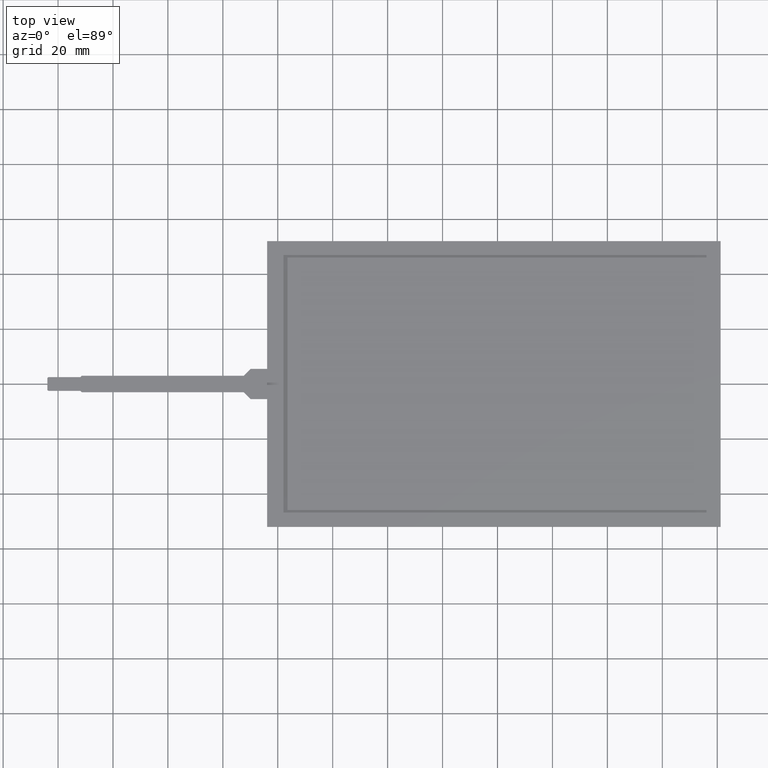
[diagram: clean part render]
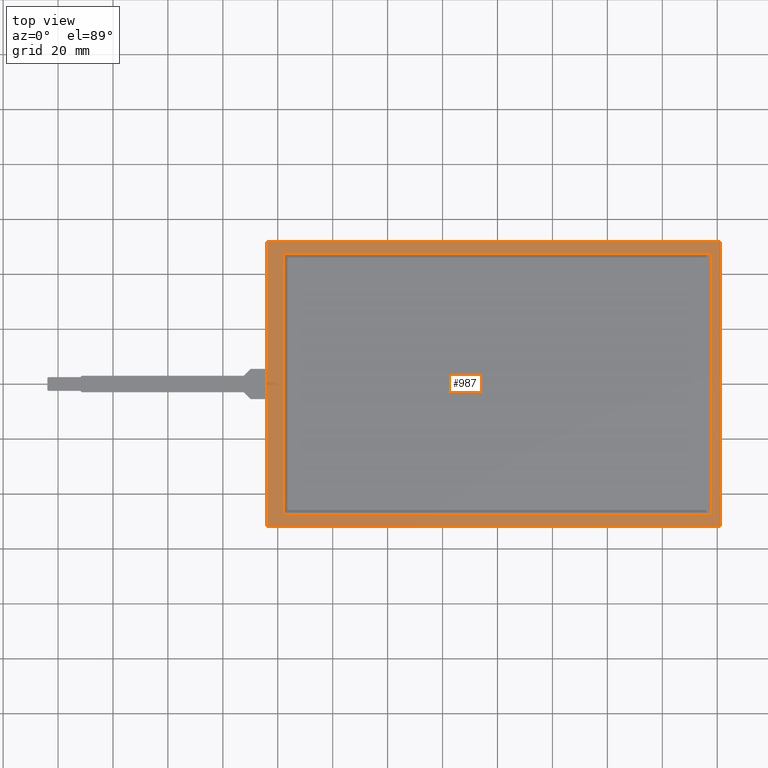
[diagram: same view with one face highlighted and labeled with its STEP entity id]
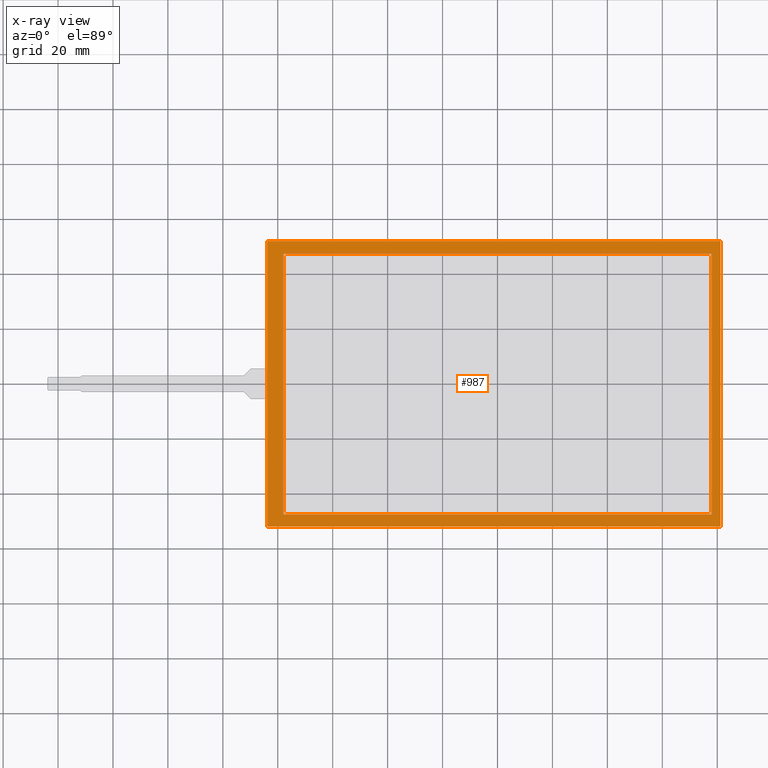
[diagram: x-ray of the same camera — body ghosted, the highlighted face saturated]
A machine part, top view. The second image highlights one B-rep face of the part: STEP entity #987.
The next image is the same camera in x-ray: the body ghosted, the highlighted face saturated — about 0% of this face is hidden behind the body in this view.
In plain terms, the highlighted planar face has unit normal (0, 0, 1).
Its self-contained STEP definition (entity closure, byte-faithful):
#67=FACE_BOUND('',#131,.T.);
#77=FACE_OUTER_BOUND('',#130,.T.);
#130=EDGE_LOOP('',(#696,#697,#698,#699));
#131=EDGE_LOOP('',(#700,#701,#702,#703));
#186=LINE('',#1402,#312);
#190=LINE('',#1410,#316);
#193=LINE('',#1416,#319);
#196=LINE('',#1421,#322);
#198=LINE('',#1427,#324);
#199=LINE('',#1429,#325);
#200=LINE('',#1431,#326);
#201=LINE('',#1432,#327);
#312=VECTOR('',#1142,10.);
#316=VECTOR('',#1148,10.);
#319=VECTOR('',#1153,10.);
#322=VECTOR('',#1158,10.);
#324=VECTOR('',#1164,10.);
#325=VECTOR('',#1165,10.);
#326=VECTOR('',#1166,10.);
#327=VECTOR('',#1167,10.);
#434=VERTEX_POINT('',#1400);
#435=VERTEX_POINT('',#1401);
#438=VERTEX_POINT('',#1409);
#440=VERTEX_POINT('',#1415);
#442=VERTEX_POINT('',#1425);
#443=VERTEX_POINT('',#1426);
#444=VERTEX_POINT('',#1428);
#445=VERTEX_POINT('',#1430);
#530=EDGE_CURVE('',#434,#435,#186,.T.);
#534=EDGE_CURVE('',#438,#434,#190,.T.);
#537=EDGE_CURVE('',#440,#438,#193,.T.);
#540=EDGE_CURVE('',#435,#440,#196,.T.);
#542=EDGE_CURVE('',#442,#443,#198,.T.);
#543=EDGE_CURVE('',#443,#444,#199,.T.);
#544=EDGE_CURVE('',#444,#445,#200,.T.);
#545=EDGE_CURVE('',#445,#442,#201,.T.);
#696=ORIENTED_EDGE('',*,*,#542,.T.);
#697=ORIENTED_EDGE('',*,*,#543,.T.);
#698=ORIENTED_EDGE('',*,*,#544,.T.);
#699=ORIENTED_EDGE('',*,*,#545,.T.);
#700=ORIENTED_EDGE('',*,*,#530,.T.);
#701=ORIENTED_EDGE('',*,*,#540,.T.);
#702=ORIENTED_EDGE('',*,*,#537,.T.);
#703=ORIENTED_EDGE('',*,*,#534,.T.);
#941=PLANE('',#1063);
#987=ADVANCED_FACE('',(#77,#67),#941,.T.);
#1063=AXIS2_PLACEMENT_3D('',#1424,#1162,#1163);
#1142=DIRECTION('',(-3.74206201685328E-16,1.,0.));
#1148=DIRECTION('',(-1.,-1.13942067953833E-16,0.));
#1153=DIRECTION('',(0.,-1.,0.));
#1158=DIRECTION('',(1.,0.,0.));
#1162=DIRECTION('center_axis',(0.,0.,1.));
#1163=DIRECTION('ref_axis',(1.,0.,0.));
#1164=DIRECTION('',(-1.,0.,0.));
#1165=DIRECTION('',(1.70803542250024E-16,-1.,0.));
#1166=DIRECTION('',(1.,5.37801041295868E-17,0.));
#1167=DIRECTION('',(-1.70803542250024E-16,1.,0.));
#1400=CARTESIAN_POINT('',(-77.95,-47.47,0.));
#1401=CARTESIAN_POINT('',(-77.95,47.47,0.));
#1402=CARTESIAN_POINT('',(-77.95,-23.735,0.));
#1409=CARTESIAN_POINT('',(77.95,-47.47,0.));
#1410=CARTESIAN_POINT('',(38.3125,-47.47,0.));
#1415=CARTESIAN_POINT('',(77.95,47.47,0.));
#1416=CARTESIAN_POINT('',(77.95,23.735,0.));
#1421=CARTESIAN_POINT('',(-39.6375,47.47,0.));
#1424=CARTESIAN_POINT('Origin',(-1.32500000000003,-2.22044604925031E-14,
0.));
#1425=CARTESIAN_POINT('',(81.25,52.,0.));
#1426=CARTESIAN_POINT('',(-83.9,52.,0.));
#1427=CARTESIAN_POINT('',(81.25,52.,0.));
#1428=CARTESIAN_POINT('',(-83.9,-52.,0.));
#1429=CARTESIAN_POINT('',(-83.9,52.,0.));
#1430=CARTESIAN_POINT('',(81.25,-52.,0.));
#1431=CARTESIAN_POINT('',(-83.9,-52.,0.));
#1432=CARTESIAN_POINT('',(81.25,-52.,0.));